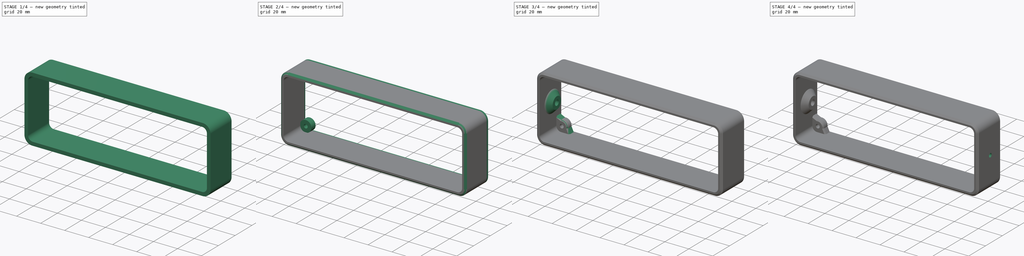
[diagram: build sequence overview — one tinted view per stage of 4, left to right]
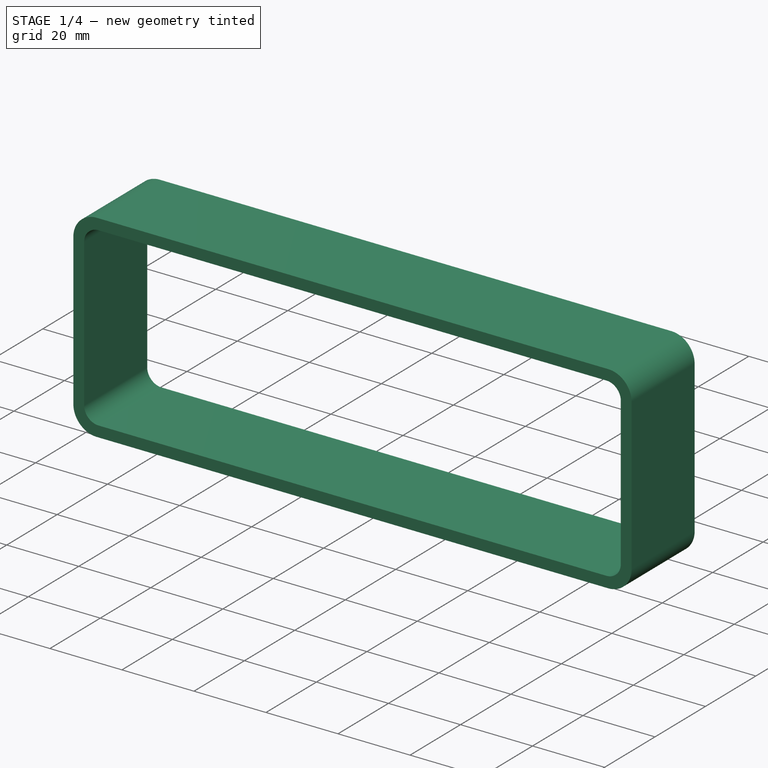
[diagram: stage 1 of 4 — iso view after this stage's code; geometry added in this stage tinted green]
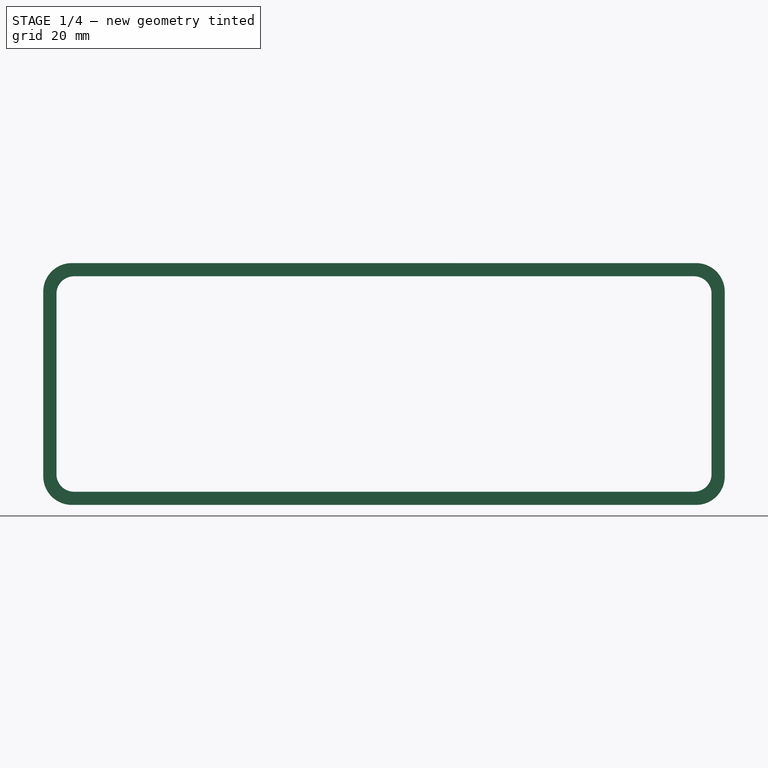
[diagram: stage 1 of 4 — front view after this stage's code; geometry added in this stage tinted green]
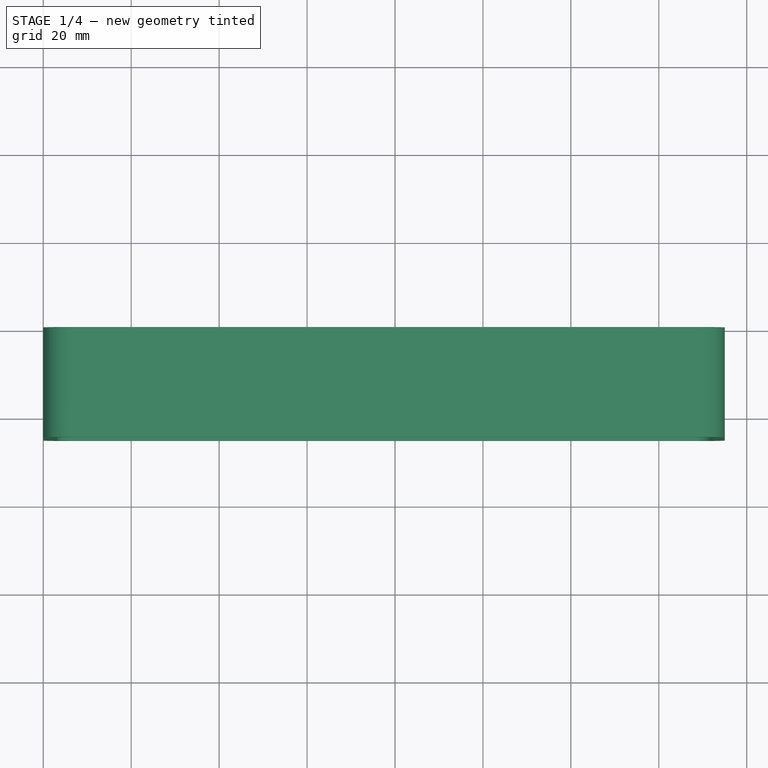
[diagram: stage 1 of 4 — top view after this stage's code; geometry added in this stage tinted green]
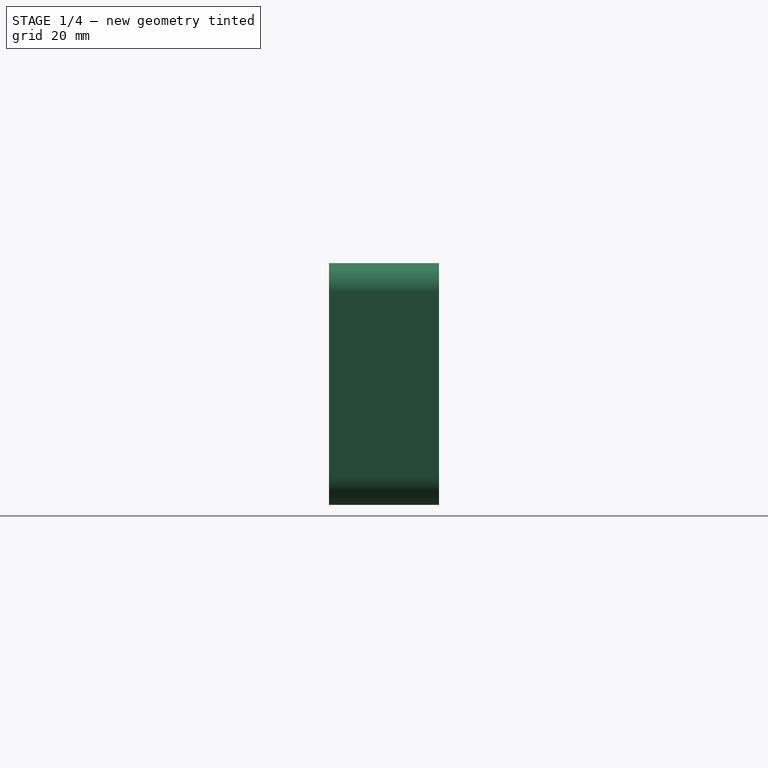
[diagram: stage 1 of 4 — right view after this stage's code; geometry added in this stage tinted green]
FCSTD DOCUMENT  (FreeCAD 0.19R24291 (Git))
Label: spacer
License: All rights reserved
LicenseURL: http://en.wikipedia.org/wiki/All_rights_reserved
objects: Sketcher::SketchObject×6, PartDesign::Pad×5, PartDesign::Chamfer×5, PartDesign::Fillet×2, PartDesign::Pocket×1, PartDesign::Body×1
note: 33 computed .brp shape members not serialized (recipe doc carries the construction recipe); baked Part::Feature solids carry a one-line shape summary decoded from their .brp

FEATURE [Sketcher::SketchObject] Sketch
  FullyConstrained = true
  MapMode = 5
  Placement = pos=(0,0,0) rot=(1,0,0;1.5708rad)
  Support = -> [XZ_Plane]
  sketch-geometry (8):
    g0: LineSegment StartX=0 StartY=0 StartZ=0 EndX=155 EndY=0 EndZ=0
    g1: LineSegment StartX=155 StartY=0 StartZ=0 EndX=155 EndY=55 EndZ=0
    g2: LineSegment StartX=155 StartY=55 StartZ=0 EndX=0 EndY=55 EndZ=0
    g3: LineSegment StartX=0 StartY=55 StartZ=0 EndX=0 EndY=0 EndZ=0
    g4: LineSegment StartX=3 StartY=52 StartZ=0 EndX=152 EndY=52 EndZ=0
    g5: LineSegment StartX=152 StartY=52 StartZ=0 EndX=152 EndY=3 EndZ=0
    g6: LineSegment StartX=152 StartY=3 StartZ=0 EndX=3 EndY=3 EndZ=0
    g7: LineSegment StartX=3 StartY=3 StartZ=0 EndX=3 EndY=52 EndZ=0
  constraints (23):
    c: Coincident(g0,g1)
    c: Coincident(g1,g2)
    c: Coincident(g2,g3)
    c: Coincident(g3,g0)
    c: Horizontal(g0)
    c: Horizontal(g2)
    c: Vertical(g1)
    c: Vertical(g3)
    c: Coincident(g0,g-1)
    c: DistanceX(g2,g2) = 155
    c: DistanceY(g3,g3) = 55
    c: Coincident(g4,g5)
    c: Coincident(g5,g6)
    c: Coincident(g6,g7)
    c: Coincident(g7,g4)
    c: Horizontal(g4)
    c: Horizontal(g6)
    c: Vertical(g5)
    c: Vertical(g7)
    c: DistanceX(g2,g4) = 3
    c: DistanceX(g4,g1) = 3
    c: DistanceY(g4,g2) = 3
    c: DistanceY(g0,g6) = 3
FEATURE [PartDesign::Pad] Pad
  Direction = (1,1,1)
  Length = 25
  Length2 = 100
  Placement = pos=(0,0,0) rot=(1,0,0;1.5708rad)
  Profile = -> Sketch
  Type = 0
FEATURE [PartDesign::Fillet] Fillet
  Base = -> Pad [Edge20,Edge13,Edge14,Edge17]
  BaseFeature = -> Pad
  Placement = pos=(0,0,0) rot=(1,0,0;1.5708rad)
  Radius = 4
  SupportTransform = false
FEATURE [PartDesign::Fillet] Fillet001
  Base = -> Fillet [Edge36,Edge33,Edge35,Edge34]
  BaseFeature = -> Fillet
  Placement = pos=(0,0,0) rot=(1,0,0;1.5708rad)
  Radius = 6.5
  SupportTransform = false
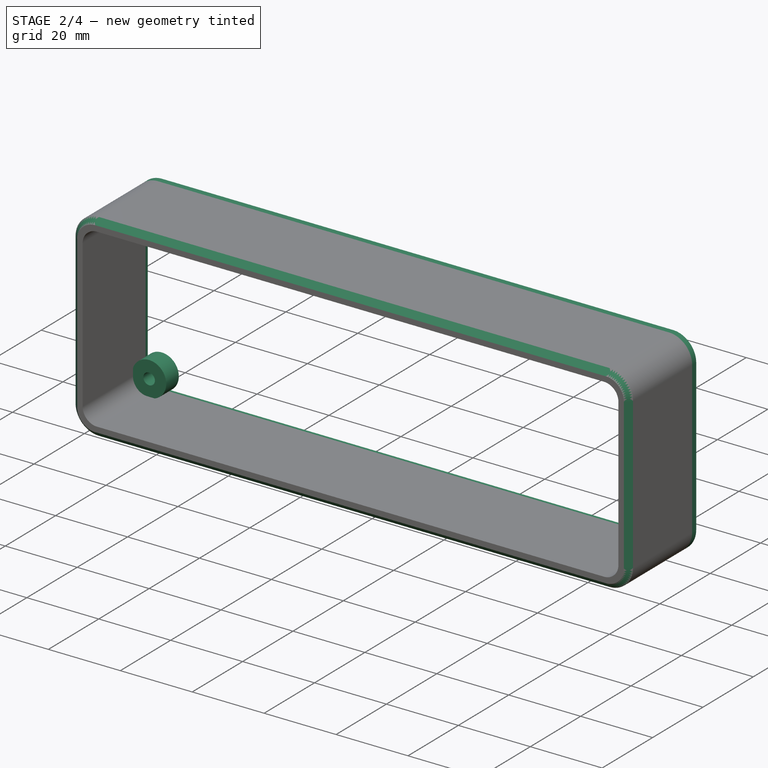
[diagram: stage 2 of 4 — iso view after this stage's code; geometry added in this stage tinted green]
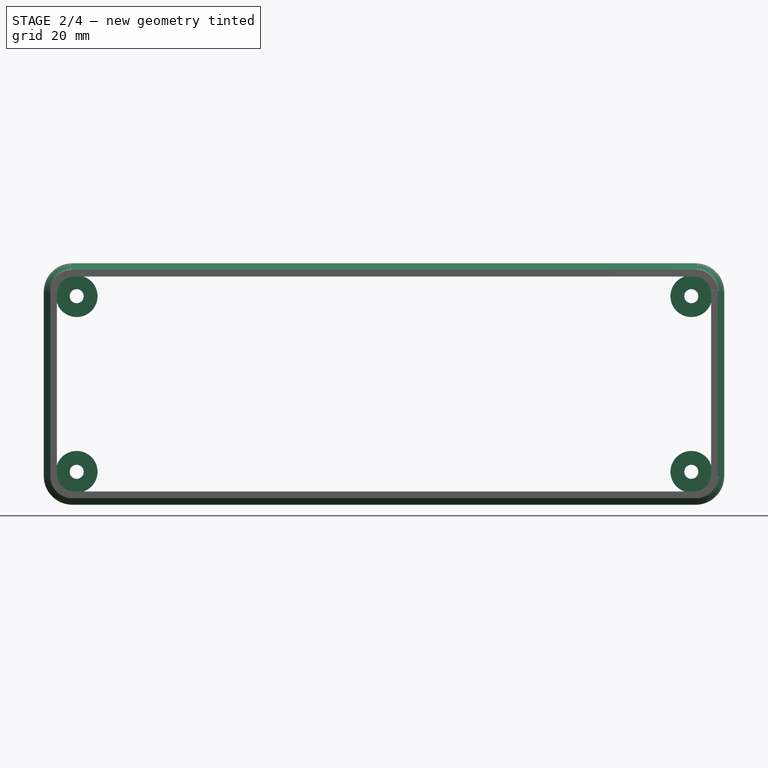
[diagram: stage 2 of 4 — front view after this stage's code; geometry added in this stage tinted green]
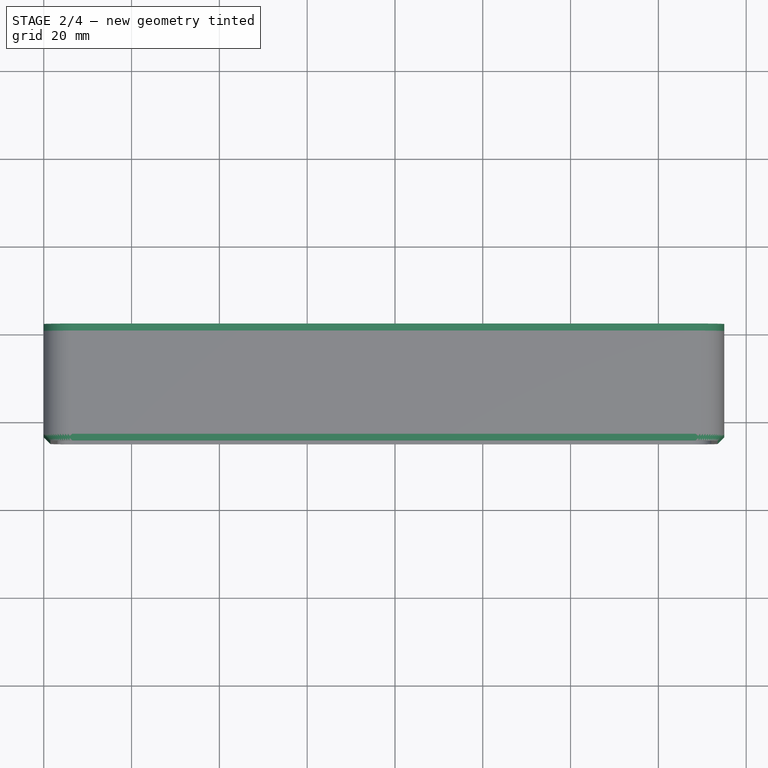
[diagram: stage 2 of 4 — top view after this stage's code; geometry added in this stage tinted green]
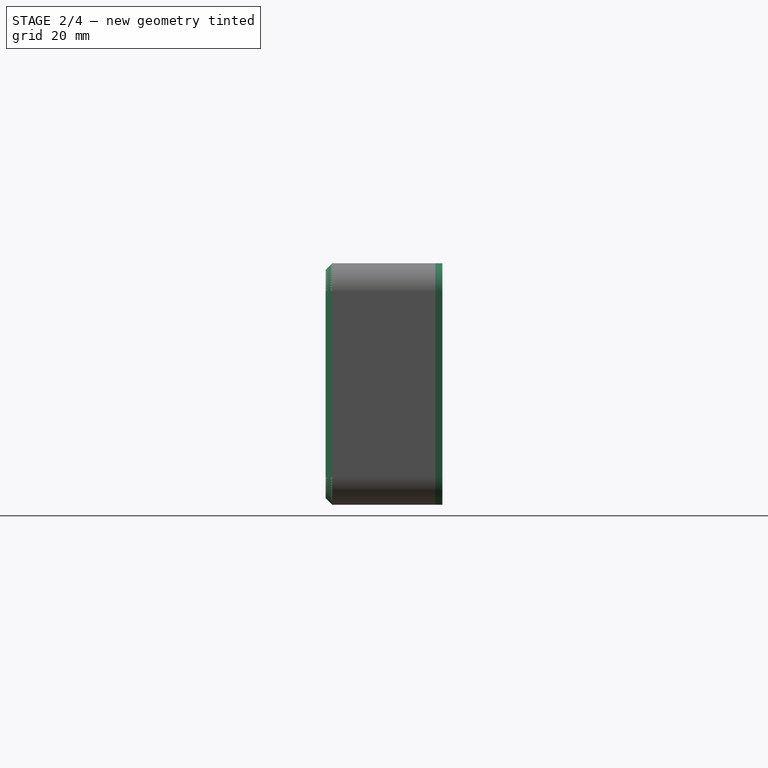
[diagram: stage 2 of 4 — right view after this stage's code; geometry added in this stage tinted green]
FEATURE [Sketcher::SketchObject] Sketch001
  ExternalGeometry = -> [Fillet001]
  FullyConstrained = true
  MapMode = 5
  Placement = pos=(0,0,0) rot=(1,0,0;1.5708rad)
  Support = -> [XZ_Plane]
  sketch-geometry (20):
    g0: LineSegment StartX=-9e-16 StartY=48.5 StartZ=0 EndX=0 EndY=6.5 EndZ=0
    g1: LineSegment StartX=6.5 StartY=-9e-16 StartZ=0 EndX=148.5 EndY=-9e-16 EndZ=0
    g2: LineSegment StartX=155 StartY=6.5 StartZ=0 EndX=155 EndY=48.5 EndZ=0
    g3: LineSegment StartX=148.5 StartY=55 StartZ=0 EndX=6.5 EndY=55 EndZ=0
    g4: ArcOfCircle CenterX=6.5 CenterY=48.5 CenterZ=0 NormalX=0 NormalY=0 NormalZ=1 AngleXU=0 Radius=6.5 StartAngle=1.5708 EndAngle=3.14159
    g5: ArcOfCircle CenterX=6.5 CenterY=6.5 CenterZ=0 NormalX=0 NormalY=0 NormalZ=1 AngleXU=0 Radius=6.5 StartAngle=3.14159 EndAngle=4.71239
    g6: ArcOfCircle CenterX=148.5 CenterY=48.5 CenterZ=0 NormalX=0 NormalY=0 NormalZ=1 AngleXU=0 Radius=6.5 StartAngle=0 EndAngle=1.5708
    g7: ArcOfCircle CenterX=148.5 CenterY=6.5 CenterZ=0 NormalX=0 NormalY=0 NormalZ=1 AngleXU=0 Radius=6.5 StartAngle=4.71239 EndAngle=6.28319
    g8: LineSegment StartX=6.5 StartY=55 StartZ=0 EndX=6.5 EndY=0 EndZ=0
    g9: LineSegment StartX=148.5 StartY=55 StartZ=0 EndX=148.5 EndY=0 EndZ=0
    g10: LineSegment StartX=155 StartY=6.5 StartZ=0 EndX=0 EndY=6.5 EndZ=0
    g11: LineSegment StartX=-9e-16 StartY=48.5 StartZ=0 EndX=155 EndY=48.5 EndZ=0
    g12: LineSegment StartX=6.5 StartY=52.5 StartZ=0 EndX=148.5 EndY=52.5 EndZ=0
    g13: LineSegment StartX=152.5 StartY=48.5 StartZ=0 EndX=152.5 EndY=6.5 EndZ=0
    g14: LineSegment StartX=148.5 StartY=2.5 StartZ=0 EndX=6.5 EndY=2.5 EndZ=0
    g15: LineSegment StartX=2.5 StartY=6.5 StartZ=0 EndX=2.5 EndY=48.5 EndZ=0
    g16: ArcOfCircle CenterX=6.5 CenterY=48.5 CenterZ=0 NormalX=0 NormalY=0 NormalZ=1 AngleXU=0 Radius=4 StartAngle=1.5708 EndAngle=3.14159
    g17: ArcOfCircle CenterX=6.5 CenterY=6.5 CenterZ=0 NormalX=0 NormalY=0 NormalZ=1 AngleXU=0 Radius=4 StartAngle=3.14159 EndAngle=4.71239
    g18: ArcOfCircle CenterX=148.5 CenterY=48.5 CenterZ=0 NormalX=0 NormalY=0 NormalZ=1 AngleXU=0 Radius=4 StartAngle=4e-16 EndAngle=1.5708
    g19: ArcOfCircle CenterX=148.5 CenterY=6.5 CenterZ=0 NormalX=0 NormalY=0 NormalZ=1 AngleXU=0 Radius=4 StartAngle=4.71239 EndAngle=6.28319
  constraints (53):
    c: Coincident(g0,g-4)
    c: Coincident(g0,g-7)
    c: Coincident(g1,g-7)
    c: Coincident(g1,g-6)
    c: Coincident(g2,g-6)
    c: Coincident(g2,g-5)
    c: Coincident(g3,g-5)
    c: Coincident(g3,g-4)
    c: Coincident(g4,g-4)
    c: Coincident(g4,g0)
    c: Coincident(g4,g3)
    c: Coincident(g5,g-7)
    c: Coincident(g5,g1)
    c: Coincident(g5,g0)
    c: Coincident(g6,g-5)
    c: Coincident(g6,g3)
    c: Coincident(g6,g2)
    c: Coincident(g7,g-6)
    c: Coincident(g7,g2)
    c: Coincident(g7,g1)
    c: Coincident(g8,g3)
    c: Coincident(g8,g1)
    c: Coincident(g9,g3)
    c: Coincident(g9,g1)
    c: Coincident(g10,g2)
    c: Coincident(g10,g0)
    c: Coincident(g11,g0)
    c: Coincident(g11,g2)
    c: PointOnObject(g12,g8)
    c: PointOnObject(g12,g9)
    c: Horizontal(g12)
    c: PointOnObject(g13,g11)
    c: PointOnObject(g13,g10)
    c: Vertical(g13)
    c: PointOnObject(g14,g9)
    c: PointOnObject(g14,g8)
    c: Horizontal(g14)
    c: PointOnObject(g15,g10)
    c: PointOnObject(g15,g11)
    c: Vertical(g15)
    c: Coincident(g16,g4)
    c: Coincident(g16,g15)
    c: Coincident(g16,g12)
    c: Coincident(g17,g5)
    c: Coincident(g17,g14)
    c: Coincident(g17,g15)
    c: Coincident(g18,g6)
    c: Coincident(g18,g12)
    c: Coincident(g18,g13)
    c: Coincident(g19,g7)
    c: Coincident(g19,g13)
    c: Coincident(g19,g14)
    c: DistanceX(g15,g13) = 150
FEATURE [PartDesign::Pad] Pad001
  BaseFeature = -> Fillet001
  Direction = (1,1,1)
  Length = 1.6
  Length2 = 100
  Placement = pos=(0,0,0) rot=(1,0,0;1.5708rad)
  Profile = -> Sketch001
  Reversed = true
  Type = 0
FEATURE [Sketcher::SketchObject] Sketch002
  FullyConstrained = true
  MapMode = 5
  Placement = pos=(0,0,0) rot=(1,0,0;1.5708rad)
  Support = -> [XZ_Plane]
  sketch-geometry (12):
    g0: Circle CenterX=147.5 CenterY=7.5 CenterZ=0 NormalX=0 NormalY=0 NormalZ=1 AngleXU=0 Radius=4.75
    g1: Circle CenterX=147.5 CenterY=47.5 CenterZ=0 NormalX=0 NormalY=0 NormalZ=1 AngleXU=0 Radius=4.75
    g2: Circle CenterX=7.5 CenterY=47.5 CenterZ=0 NormalX=0 NormalY=0 NormalZ=1 AngleXU=0 Radius=4.75
    g3: Circle CenterX=7.5 CenterY=7.5 CenterZ=0 NormalX=0 NormalY=0 NormalZ=1 AngleXU=0 Radius=4.75
    g4: Circle CenterX=147.5 CenterY=47.5 CenterZ=0 NormalX=0 NormalY=0 NormalZ=1 AngleXU=0 Radius=1.6
    g5: Circle CenterX=147.5 CenterY=7.5 CenterZ=0 NormalX=0 NormalY=0 NormalZ=1 AngleXU=0 Radius=1.6
    g6: Circle CenterX=7.5 CenterY=47.5 CenterZ=0 NormalX=0 NormalY=0 NormalZ=1 AngleXU=0 Radius=1.6
    g7: Circle CenterX=7.5 CenterY=7.5 CenterZ=0 NormalX=0 NormalY=0 NormalZ=1 AngleXU=0 Radius=1.6
    g8: LineSegment StartX=7.5 StartY=47.5 StartZ=0 EndX=147.5 EndY=47.5 EndZ=0
    g9: LineSegment StartX=147.5 StartY=47.5 StartZ=0 EndX=147.5 EndY=7.5 EndZ=0
    g10: LineSegment StartX=147.5 StartY=7.5 StartZ=0 EndX=7.5 EndY=7.5 EndZ=0
    g11: LineSegment StartX=7.5 StartY=7.5 StartZ=0 EndX=7.5 EndY=47.5 EndZ=0
  constraints (28):
    c: Diameter(g2) = 9.5
    c: Diameter(g3) = 9.5
    c: Diameter(g1) = 9.5
    c: Diameter(g0) = 9.5
    c: Coincident(g4,g1)
    c: Coincident(g5,g0)
    c: Coincident(g6,g2)
    c: Coincident(g7,g3)
    c: Diameter(g6) = 3.2
    c: Diameter(g7) = 3.2
    c: Diameter(g4) = 3.2
    c: Diameter(g5) = 3.2
    c: Coincident(g8,g9)
    c: Coincident(g9,g10)
    c: Coincident(g10,g11)
    c: Coincident(g11,g8)
    c: Horizontal(g8)
    c: Horizontal(g10)
    c: Vertical(g9)
    c: Vertical(g11)
    c: Coincident(g8,g2)
    c: Coincident(g10,g3)
    c: Coincident(g0,g9)
    c: Coincident(g1,g8)
    c: DistanceY(g9,g9) = 40
    c: DistanceX(g8,g8) = 140
    c: DistanceY(g-1,g3) = 7.5
    c: DistanceX(g-1,g3) = 7.5
FEATURE [PartDesign::Pad] Pad002
  BaseFeature = -> Pad001
  Direction = (1,1,1)
  Length = 5
  Length2 = 100
  Placement = pos=(0,0,0) rot=(1,0,0;1.5708rad)
  Profile = -> Sketch002
  Type = 0
FEATURE [PartDesign::Chamfer] Chamfer
  Angle = 45
  Base = -> Pad002 [Edge57,Edge92]
  BaseFeature = -> Pad002
  ChamferType = 0
  FlipDirection = false
  Placement = pos=(0,0,0) rot=(1,0,0;1.5708rad)
  Size = 1.5
  Size2 = 1
  SupportTransform = false
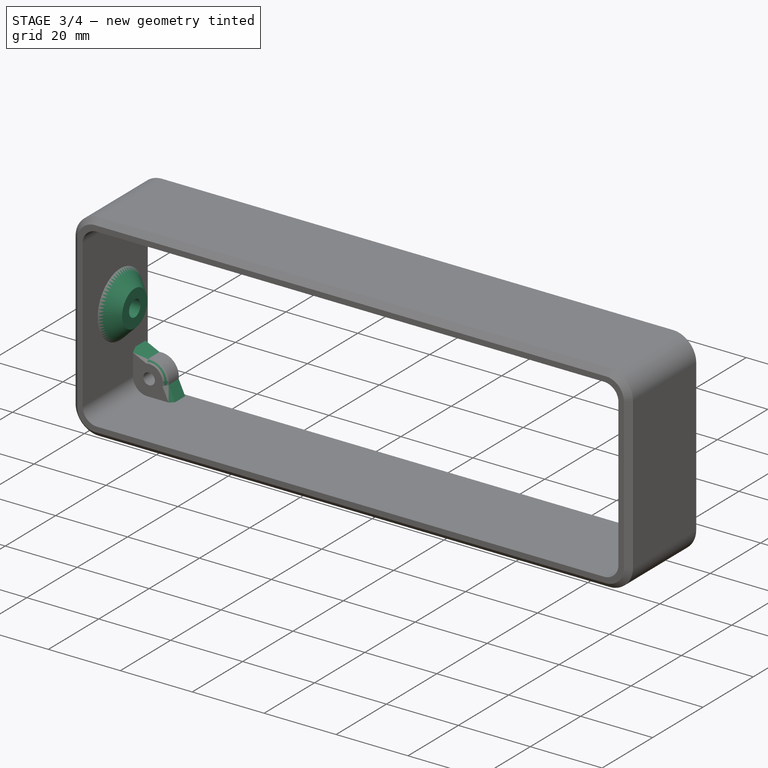
[diagram: stage 3 of 4 — iso view after this stage's code; geometry added in this stage tinted green]
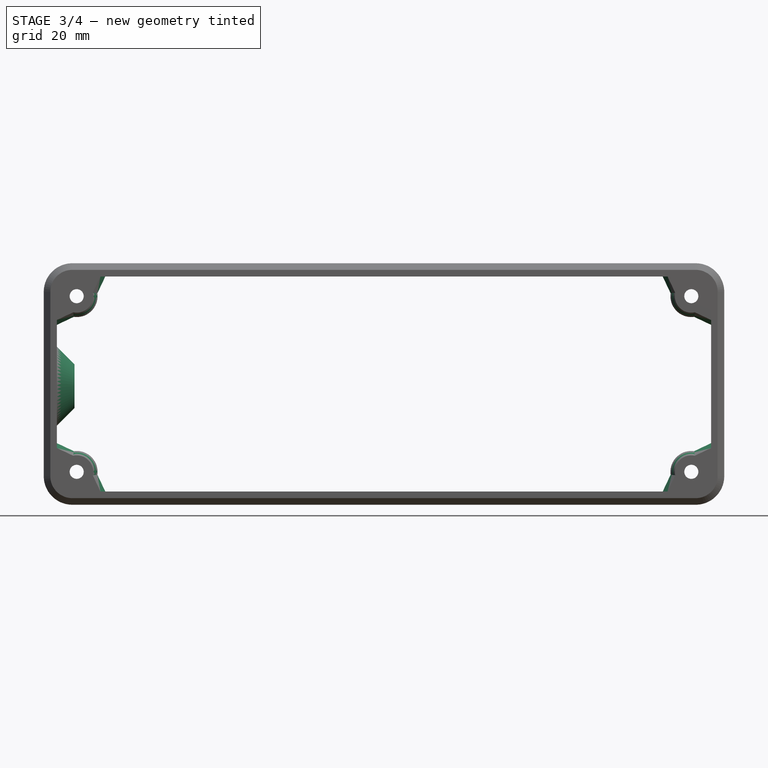
[diagram: stage 3 of 4 — front view after this stage's code; geometry added in this stage tinted green]
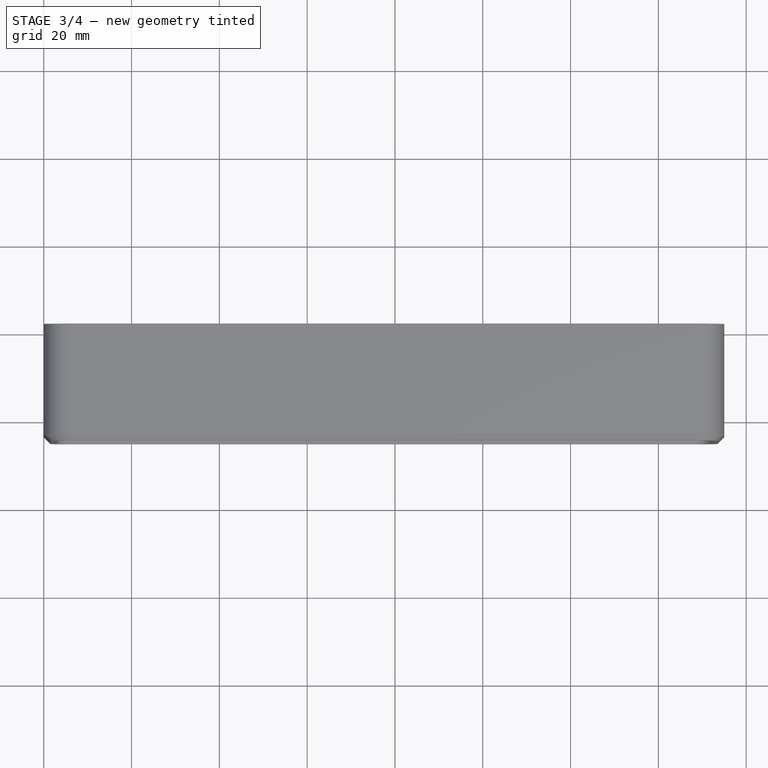
[diagram: stage 3 of 4 — top view after this stage's code; geometry added in this stage tinted green]
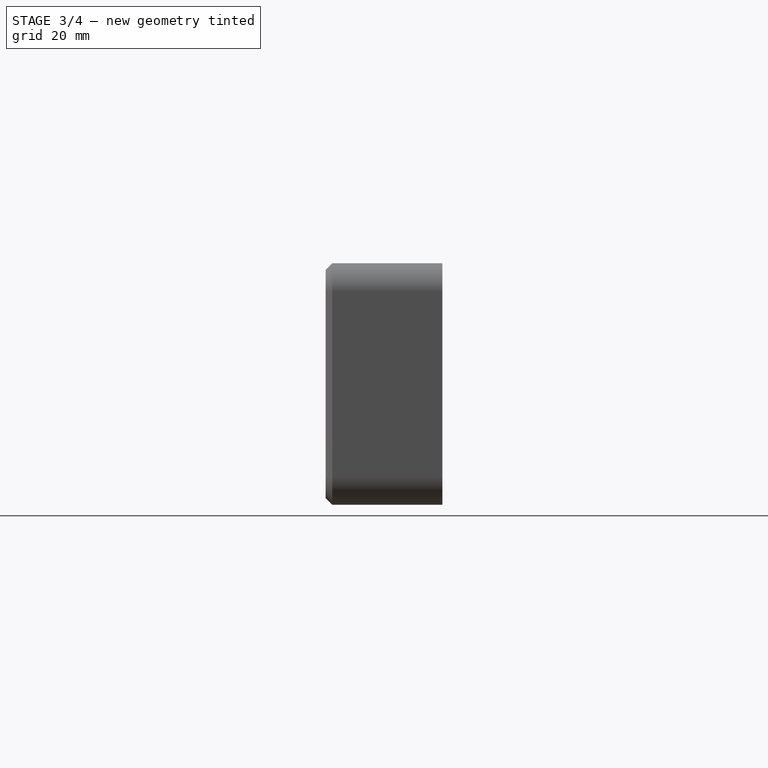
[diagram: stage 3 of 4 — right view after this stage's code; geometry added in this stage tinted green]
FEATURE [PartDesign::Chamfer] Chamfer001
  Angle = 45
  Base = -> Chamfer [Edge61,Edge49,Edge51,Edge64,Edge34,Edge55,Edge39,Edge45]
  BaseFeature = -> Chamfer
  ChamferType = 0
  FlipDirection = false
  Placement = pos=(0,0,0) rot=(1,0,0;1.5708rad)
  Size = 5
  Size2 = 1
  SupportTransform = false
FEATURE [PartDesign::Chamfer] Chamfer002
  Angle = 45
  Base = -> Chamfer001 [Edge49,Edge50,Edge41,Edge168,Edge169,Edge167,Edge42,Edge38,Edge43,Edge160,Edge161,Edge158]
  BaseFeature = -> Chamfer001
  ChamferType = 0
  FlipDirection = false
  Placement = pos=(0,0,0) rot=(1,0,0;1.5708rad)
  Size = 1
  Size2 = 1
  SupportTransform = false
FEATURE [Sketcher::SketchObject] Sketch003
  FullyConstrained = true
  MapMode = 5
  Placement = pos=(3,0,0) rot=(0.707107,0,0.707107;3.14159rad)
  Support = -> [Chamfer002]
  sketch-geometry (2):
    g0: Circle CenterX=27 CenterY=10 CenterZ=0 NormalX=0 NormalY=0 NormalZ=1 AngleXU=0 Radius=5
    g1: Circle CenterX=27 CenterY=10 CenterZ=0 NormalX=0 NormalY=0 NormalZ=1 AngleXU=0 Radius=2.25
  constraints (5):
    c: Coincident(g1,g0)
    c: Diameter(g1) = 4.5
    c: Diameter(g0) = 10
    c: DistanceX(g-1,g0) = 27
    c: DistanceY(g-1,g0) = 10
FEATURE [PartDesign::Pad] Pad003
  BaseFeature = -> Chamfer002
  Direction = (1,1,1)
  Length = 4
  Length2 = 100
  Placement = pos=(0,0,0) rot=(1,0,0;1.5708rad)
  Profile = -> Sketch003
  Type = 0
FEATURE [PartDesign::Chamfer] Chamfer003
  Angle = 45
  Base = -> Pad003 [Edge95]
  BaseFeature = -> Pad003
  ChamferType = 0
  FlipDirection = false
  Placement = pos=(0,0,0) rot=(1,0,0;1.5708rad)
  Size = 3.99
  Size2 = 1
  SupportTransform = false
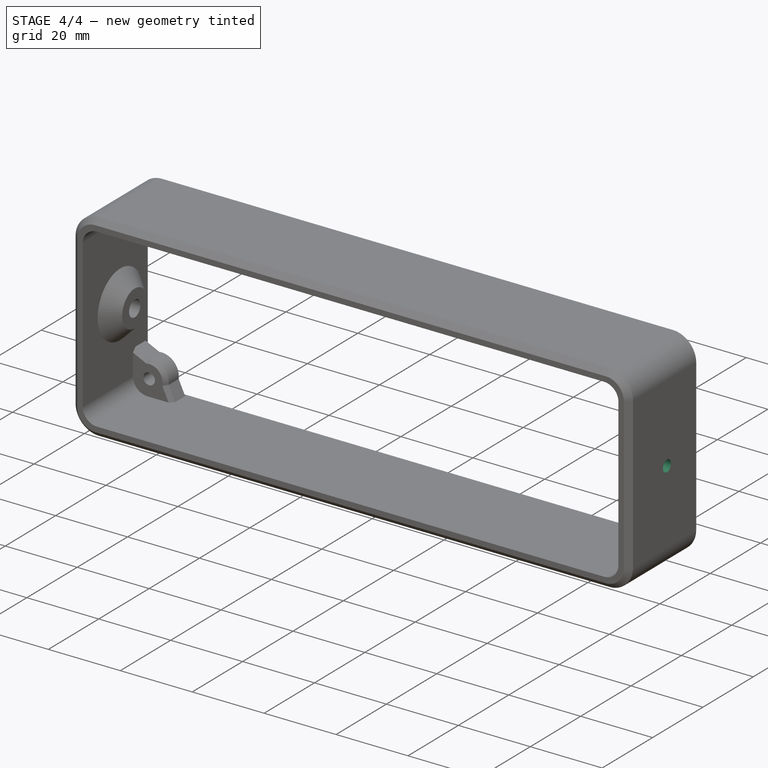
[diagram: stage 4 of 4 — iso view after this stage's code; geometry added in this stage tinted green]
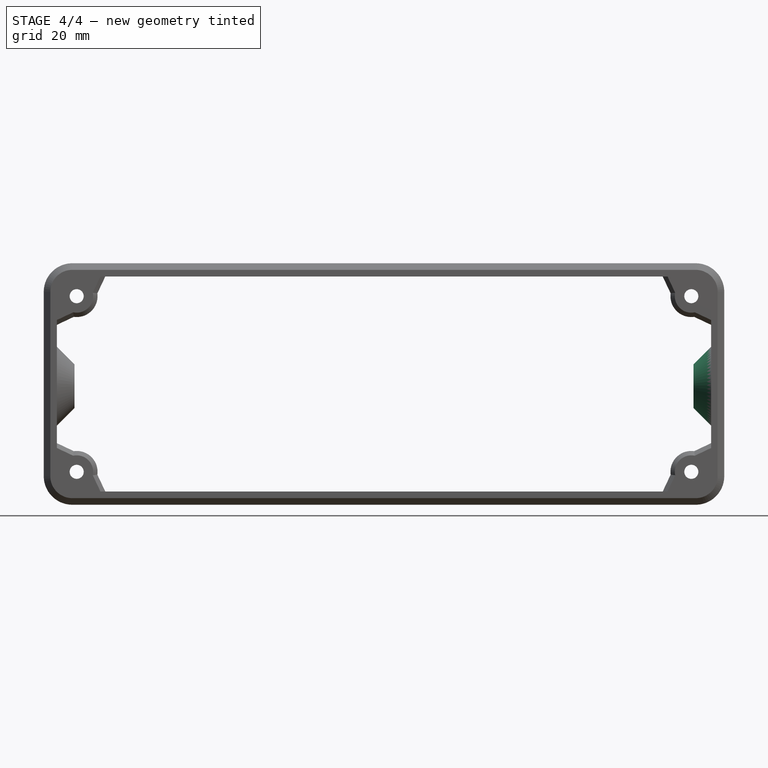
[diagram: stage 4 of 4 — front view after this stage's code; geometry added in this stage tinted green]
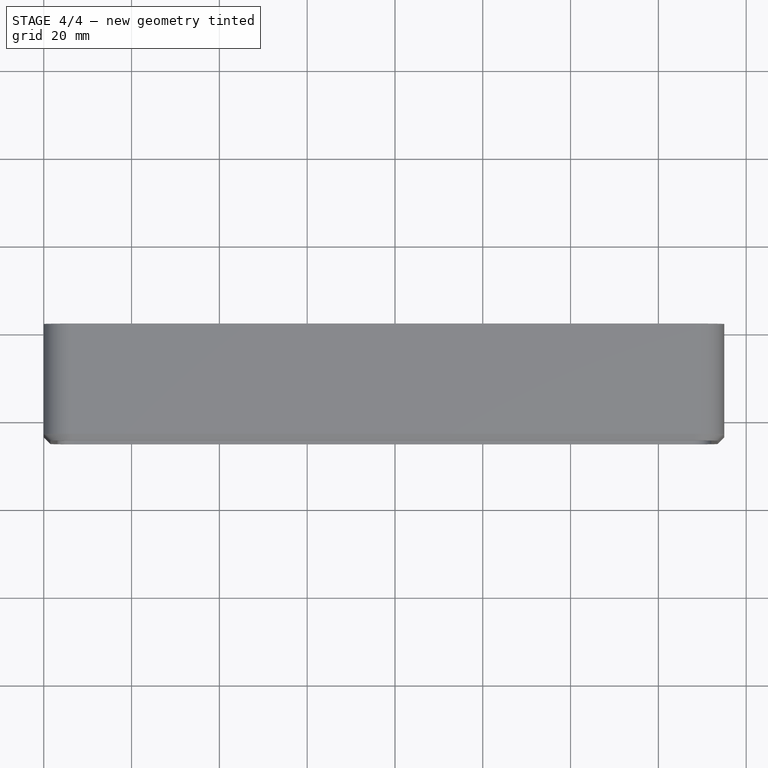
[diagram: stage 4 of 4 — top view after this stage's code; geometry added in this stage tinted green]
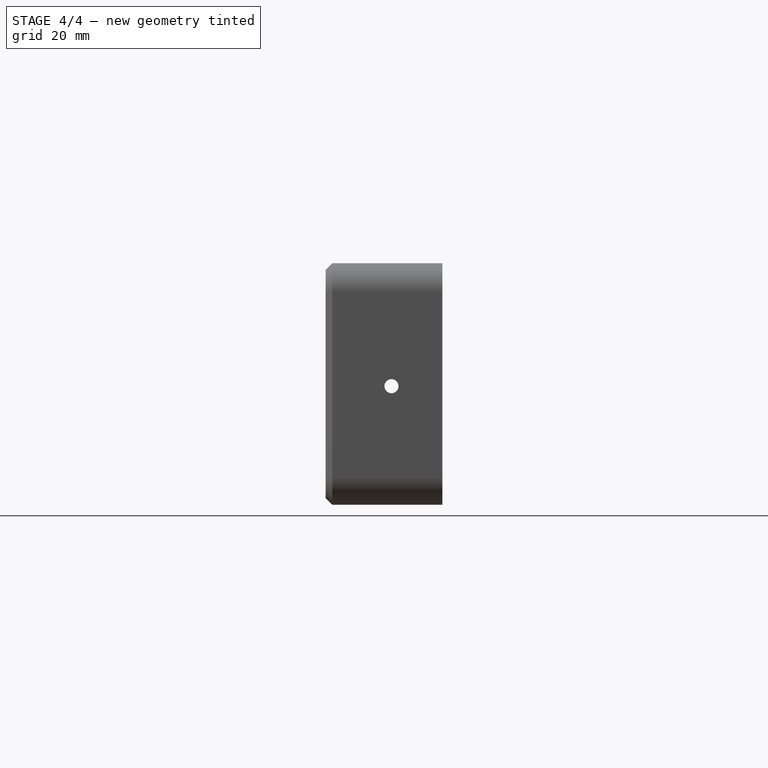
[diagram: stage 4 of 4 — right view after this stage's code; geometry added in this stage tinted green]
FEATURE [Sketcher::SketchObject] Sketch004
  FullyConstrained = true
  MapMode = 5
  Placement = pos=(152,0,0) rot=(0.707107,0,-0.707107;3.14159rad)
  Support = -> [Chamfer003]
  sketch-geometry (2):
    g0: Circle CenterX=-27 CenterY=10 CenterZ=0 NormalX=0 NormalY=0 NormalZ=1 AngleXU=0 Radius=5
    g1: Circle CenterX=-27 CenterY=10 CenterZ=0 NormalX=0 NormalY=0 NormalZ=1 AngleXU=0 Radius=2.25
  constraints (5):
    c: Coincident(g1,g0)
    c: Diameter(g1) = 4.5
    c: Diameter(g0) = 10
    c: DistanceY(g-1,g0) = 10
    c: DistanceX(g0,g-1) = 27
FEATURE [PartDesign::Pad] Pad004
  BaseFeature = -> Chamfer003
  Direction = (1,1,1)
  Length = 4
  Length2 = 100
  Placement = pos=(0,0,0) rot=(1,0,0;1.5708rad)
  Profile = -> Sketch004
  Type = 0
FEATURE [PartDesign::Chamfer] Chamfer004
  Angle = 45
  Base = -> Pad004 [Edge139]
  BaseFeature = -> Pad004
  ChamferType = 0
  FlipDirection = false
  Placement = pos=(0,0,0) rot=(1,0,0;1.5708rad)
  Size = 3.99
  Size2 = 1
  SupportTransform = false
FEATURE [Sketcher::SketchObject] Sketch005
  ExternalGeometry = -> [Chamfer004]
  FullyConstrained = true
  MapMode = 5
  Placement = pos=(0,0,0) rot=(0.707107,0,-0.707107;3.14159rad)
  Support = -> [Chamfer004]
  sketch-geometry (1):
    g0: Circle CenterX=-27 CenterY=10 CenterZ=0 NormalX=0 NormalY=0 NormalZ=1 AngleXU=0 Radius=1.6
  constraints (2):
    c: Coincident(g0,g-3)
    c: Diameter(g0) = 3.2
FEATURE [PartDesign::Pocket] Pocket
  BaseFeature = -> Chamfer004
  Length = 200
  Length2 = 100
  Placement = pos=(0,0,0) rot=(1,0,0;1.5708rad)
  Profile = -> Sketch005
  Type = 0
FEATURE [PartDesign::Body] Body
  Group = -> [Sketch,Pad,Fillet,Fillet001,Sketch001,Pad001,Sketch002,Pad002,Chamfer,Chamfer001,Chamfer002,Sketch003,Pad003,Chamfer003,Sketch004,Pad004,Chamfer004,Sketch005,Pocket]
  Origin = -> Origin
  Tip = -> Pocket
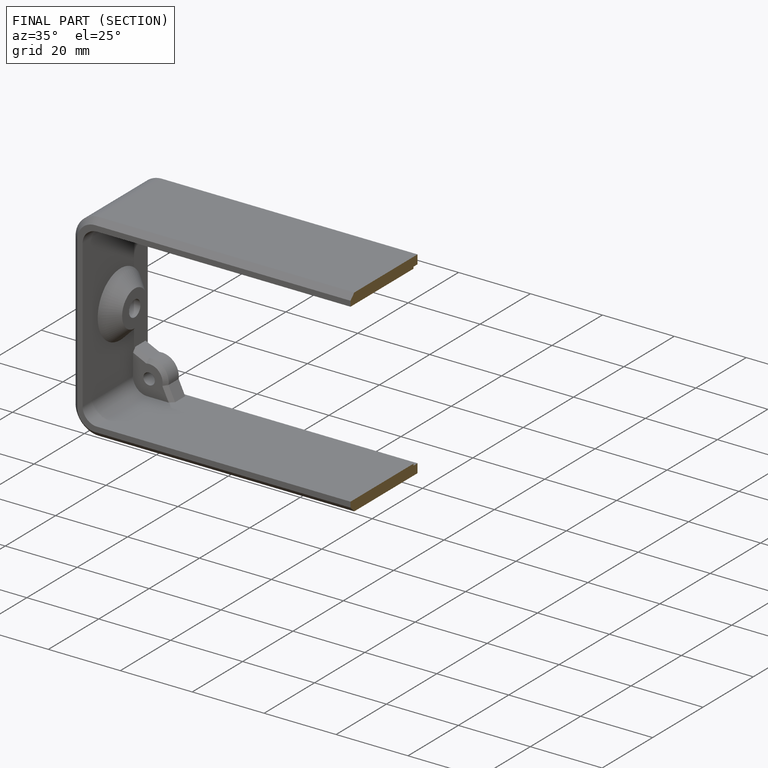
[diagram: finished part — half-section view (interior)]
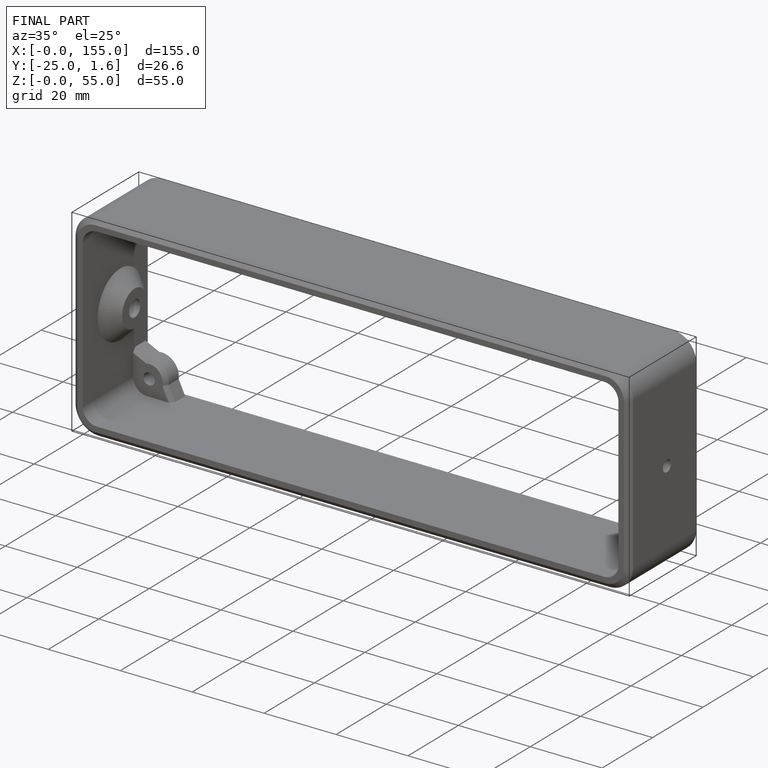
[diagram: finished part — iso view with bounding-box wireframe]
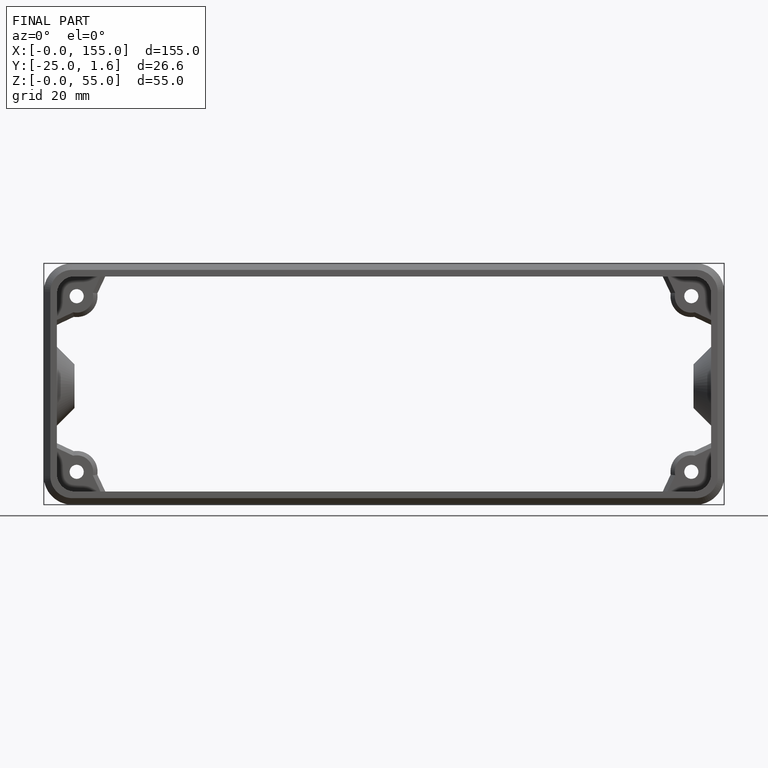
[diagram: finished part — front view with bounding-box wireframe]
